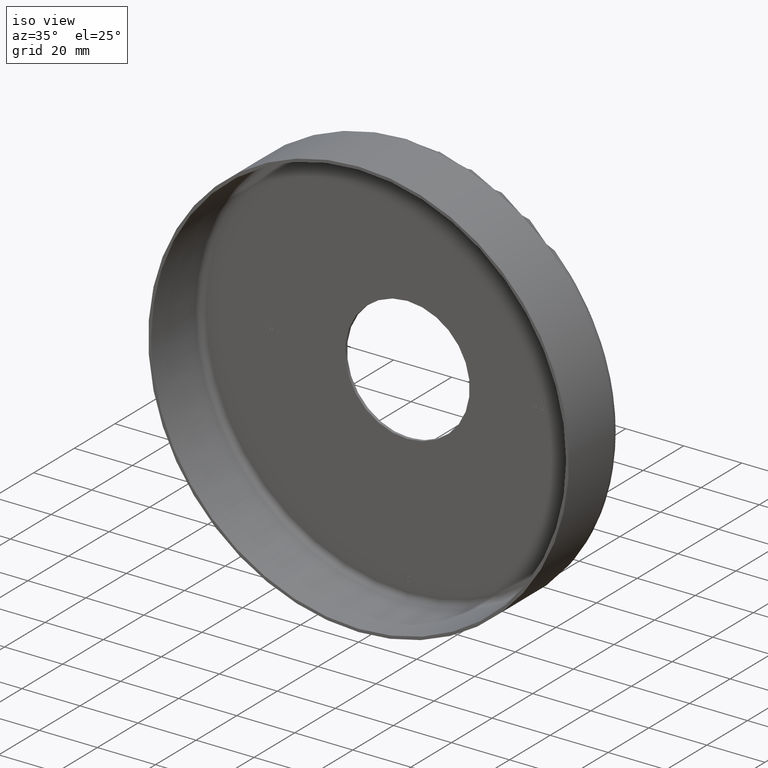
[diagram: clean part render]
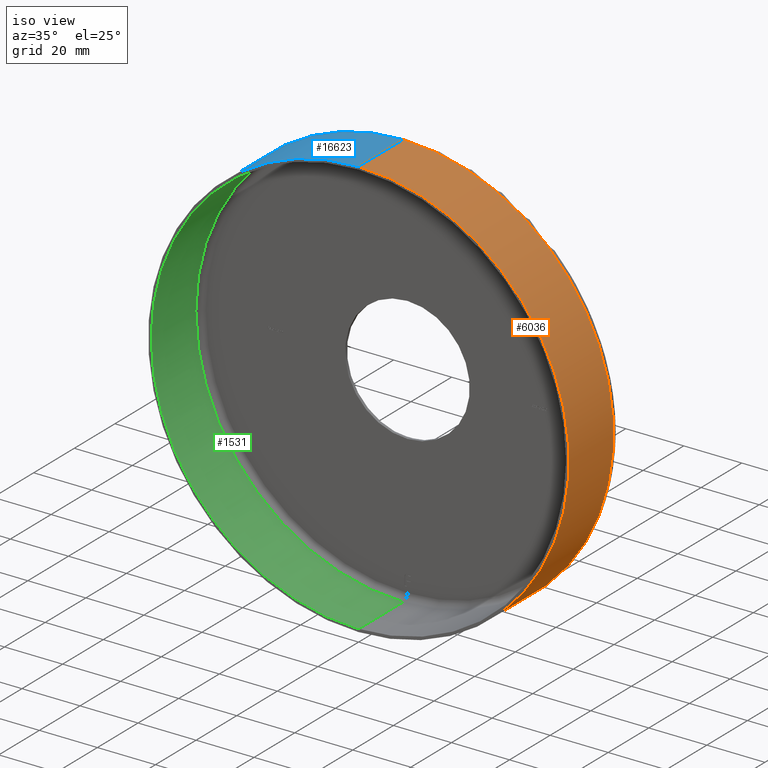
[diagram: same view with three faces highlighted in distinct colors, each labeled with its STEP entity id]
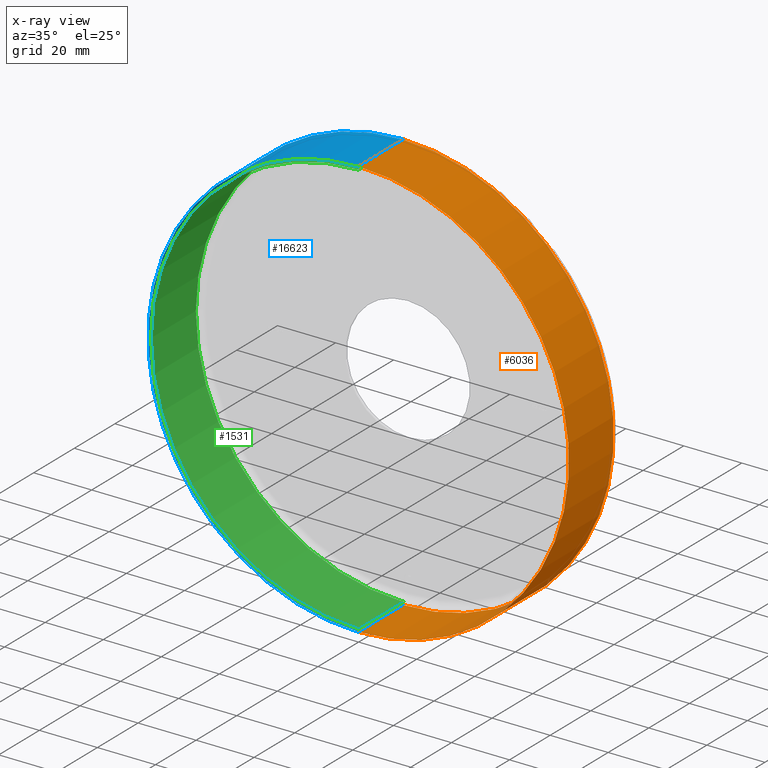
[diagram: x-ray of the same camera — body ghosted, the three highlighted faces saturated]
A machine part, iso view with three faces highlighted in distinct colors.
The next image is the same camera in x-ray (body ghosted, the three faces saturated) — at least one of them is partly hidden behind the body in this view.
Their STEP definitions:

[orange] entity #6036 — the highlighted cylindrical surface (partial cylindrical patch) has radius 72.5 mm, axis along (-0, -1, -0).
#230 = ORIENTED_EDGE ( 'NONE', *, *, #12863, .F. ) ;
#344 = ORIENTED_EDGE ( 'NONE', *, *, #643, .T. ) ;
#426 = CARTESIAN_POINT ( 'NONE',  ( 0.000000000000000000, 0.000000000000000000, 0.000000000000000000 ) ) ;
#643 = EDGE_CURVE ( 'NONE', #5428, #13006, #11195, .T. ) ;
#842 = ORIENTED_EDGE ( 'NONE', *, *, #5270, .T. ) ;
#1445 = CARTESIAN_POINT ( 'NONE',  ( 0.000000000000000000, 0.000000000000000000, -72.50000000000000000 ) ) ;
#2555 = DIRECTION ( 'NONE',  ( -0.000000000000000000, -1.000000000000000000, -0.000000000000000000 ) ) ;
#2934 = CIRCLE ( 'NONE', #3778, 72.50000000000000000 ) ;
#3068 = CARTESIAN_POINT ( 'NONE',  ( 0.000000000000000000, 22.00000000000000355, 0.000000000000000000 ) ) ;
#3213 = AXIS2_PLACEMENT_3D ( 'NONE', #3484, #16206, #16651 ) ;
#3436 = VECTOR ( 'NONE', #5683, 1000.000000000000000 ) ;
#3484 = CARTESIAN_POINT ( 'NONE',  ( 0.000000000000000000, 0.000000000000000000, 0.000000000000000000 ) ) ;
#3778 = AXIS2_PLACEMENT_3D ( 'NONE', #426, #4272, #6810 ) ;
#3873 = VERTEX_POINT ( 'NONE', #1445 ) ;
#4154 = DIRECTION ( 'NONE',  ( 0.000000000000000000, 0.000000000000000000, -1.000000000000000000 ) ) ;
#4272 = DIRECTION ( 'NONE',  ( -0.000000000000000000, -1.000000000000000000, -0.000000000000000000 ) ) ;
#4352 = EDGE_CURVE ( 'NONE', #13092, #3873, #16183, .T. ) ;
#4464 = FACE_OUTER_BOUND ( 'NONE', #10176, .T. ) ;
#4636 = AXIS2_PLACEMENT_3D ( 'NONE', #3068, #10823, #4154 ) ;
#4958 = CARTESIAN_POINT ( 'NONE',  ( 8.878689293818309285E-15, 0.000000000000000000, 72.50000000000000000 ) ) ;
#5270 = EDGE_CURVE ( 'NONE', #13092, #5428, #5665, .T. ) ;
#5428 = VERTEX_POINT ( 'NONE', #10077 ) ;
#5665 = CIRCLE ( 'NONE', #4636, 72.50000000000000000 ) ;
#5683 = DIRECTION ( 'NONE',  ( -0.000000000000000000, -1.000000000000000000, -0.000000000000000000 ) ) ;
#6036 = ADVANCED_FACE ( 'NONE', ( #4464 ), #7687, .T. ) ;
#6137 = VECTOR ( 'NONE', #2555, 1000.000000000000000 ) ;
#6810 = DIRECTION ( 'NONE',  ( 0.000000000000000000, 0.000000000000000000, -1.000000000000000000 ) ) ;
#7603 = ORIENTED_EDGE ( 'NONE', *, *, #4352, .F. ) ;
#7687 = CYLINDRICAL_SURFACE ( 'NONE', #3213, 72.50000000000000000 ) ;
#10077 = CARTESIAN_POINT ( 'NONE',  ( 8.878689293818309285E-15, 22.00000000000000355, 72.50000000000000000 ) ) ;
#10176 = EDGE_LOOP ( 'NONE', ( #842, #344, #230, #7603 ) ) ;
#10823 = DIRECTION ( 'NONE',  ( -0.000000000000000000, -1.000000000000000000, -0.000000000000000000 ) ) ;
#11195 = LINE ( 'NONE', #4958, #6137 ) ;
#12863 = EDGE_CURVE ( 'NONE', #3873, #13006, #2934, .T. ) ;
#12899 = CARTESIAN_POINT ( 'NONE',  ( 8.878689293818309285E-15, 0.000000000000000000, 72.50000000000000000 ) ) ;
#13006 = VERTEX_POINT ( 'NONE', #12899 ) ;
#13092 = VERTEX_POINT ( 'NONE', #13237 ) ;
#13237 = CARTESIAN_POINT ( 'NONE',  ( 0.000000000000000000, 22.00000000000000355, -72.50000000000000000 ) ) ;
#13584 = CARTESIAN_POINT ( 'NONE',  ( 0.000000000000000000, 0.000000000000000000, -72.50000000000000000 ) ) ;
#16183 = LINE ( 'NONE', #13584, #3436 ) ;
#16206 = DIRECTION ( 'NONE',  ( -0.000000000000000000, -1.000000000000000000, -0.000000000000000000 ) ) ;
#16651 = DIRECTION ( 'NONE',  ( 0.000000000000000000, 0.000000000000000000, -1.000000000000000000 ) ) ;

[blue] entity #16623 — the highlighted cylindrical surface (partial cylindrical patch) has radius 72.5 mm, axis along (-0, -1, -0).
#643 = EDGE_CURVE ( 'NONE', #5428, #13006, #11195, .T. ) ;
#645 = ORIENTED_EDGE ( 'NONE', *, *, #643, .F. ) ;
#866 = CARTESIAN_POINT ( 'NONE',  ( 0.000000000000000000, 0.000000000000000000, 0.000000000000000000 ) ) ;
#872 = DIRECTION ( 'NONE',  ( 0.000000000000000000, 0.000000000000000000, -1.000000000000000000 ) ) ;
#1282 = DIRECTION ( 'NONE',  ( -0.000000000000000000, -1.000000000000000000, -0.000000000000000000 ) ) ;
#1286 = CYLINDRICAL_SURFACE ( 'NONE', #7599, 72.50000000000000000 ) ;
#1445 = CARTESIAN_POINT ( 'NONE',  ( 0.000000000000000000, 0.000000000000000000, -72.50000000000000000 ) ) ;
#2159 = DIRECTION ( 'NONE',  ( 0.000000000000000000, 0.000000000000000000, -1.000000000000000000 ) ) ;
#2522 = DIRECTION ( 'NONE',  ( 0.000000000000000000, 0.000000000000000000, -1.000000000000000000 ) ) ;
#2555 = DIRECTION ( 'NONE',  ( -0.000000000000000000, -1.000000000000000000, -0.000000000000000000 ) ) ;
#3436 = VECTOR ( 'NONE', #5683, 1000.000000000000000 ) ;
#3873 = VERTEX_POINT ( 'NONE', #1445 ) ;
#4182 = ORIENTED_EDGE ( 'NONE', *, *, #10071, .F. ) ;
#4352 = EDGE_CURVE ( 'NONE', #13092, #3873, #16183, .T. ) ;
#4958 = CARTESIAN_POINT ( 'NONE',  ( 8.878689293818309285E-15, 0.000000000000000000, 72.50000000000000000 ) ) ;
#5342 = FACE_OUTER_BOUND ( 'NONE', #7147, .T. ) ;
#5428 = VERTEX_POINT ( 'NONE', #10077 ) ;
#5594 = CARTESIAN_POINT ( 'NONE',  ( 0.000000000000000000, 0.000000000000000000, 0.000000000000000000 ) ) ;
#5683 = DIRECTION ( 'NONE',  ( -0.000000000000000000, -1.000000000000000000, -0.000000000000000000 ) ) ;
#5968 = DIRECTION ( 'NONE',  ( -0.000000000000000000, -1.000000000000000000, -0.000000000000000000 ) ) ;
#6020 = DIRECTION ( 'NONE',  ( -0.000000000000000000, -1.000000000000000000, -0.000000000000000000 ) ) ;
#6137 = VECTOR ( 'NONE', #2555, 1000.000000000000000 ) ;
#6765 = CIRCLE ( 'NONE', #14282, 72.50000000000000000 ) ;
#7147 = EDGE_LOOP ( 'NONE', ( #645, #8598, #11726, #4182 ) ) ;
#7599 = AXIS2_PLACEMENT_3D ( 'NONE', #5594, #1282, #2522 ) ;
#8598 = ORIENTED_EDGE ( 'NONE', *, *, #14045, .T. ) ;
#10071 = EDGE_CURVE ( 'NONE', #13006, #3873, #11647, .T. ) ;
#10077 = CARTESIAN_POINT ( 'NONE',  ( 8.878689293818309285E-15, 22.00000000000000355, 72.50000000000000000 ) ) ;
#11195 = LINE ( 'NONE', #4958, #6137 ) ;
#11647 = CIRCLE ( 'NONE', #13734, 72.50000000000000000 ) ;
#11726 = ORIENTED_EDGE ( 'NONE', *, *, #4352, .T. ) ;
#12899 = CARTESIAN_POINT ( 'NONE',  ( 8.878689293818309285E-15, 0.000000000000000000, 72.50000000000000000 ) ) ;
#13006 = VERTEX_POINT ( 'NONE', #12899 ) ;
#13092 = VERTEX_POINT ( 'NONE', #13237 ) ;
#13237 = CARTESIAN_POINT ( 'NONE',  ( 0.000000000000000000, 22.00000000000000355, -72.50000000000000000 ) ) ;
#13584 = CARTESIAN_POINT ( 'NONE',  ( 0.000000000000000000, 0.000000000000000000, -72.50000000000000000 ) ) ;
#13698 = CARTESIAN_POINT ( 'NONE',  ( 0.000000000000000000, 22.00000000000000355, 0.000000000000000000 ) ) ;
#13734 = AXIS2_PLACEMENT_3D ( 'NONE', #866, #6020, #2159 ) ;
#14045 = EDGE_CURVE ( 'NONE', #5428, #13092, #6765, .T. ) ;
#14282 = AXIS2_PLACEMENT_3D ( 'NONE', #13698, #5968, #872 ) ;
#16183 = LINE ( 'NONE', #13584, #3436 ) ;
#16623 = ADVANCED_FACE ( 'NONE', ( #5342 ), #1286, .T. ) ;

[green] entity #1531 — the highlighted cylindrical surface (partial cylindrical patch) has radius 71.5 mm, axis along (-0, -1, -0).
#44 = DIRECTION ( 'NONE',  ( -0.000000000000000000, -1.000000000000000000, -0.000000000000000000 ) ) ;
#57 = ORIENTED_EDGE ( 'NONE', *, *, #12360, .T. ) ;
#121 = DIRECTION ( 'NONE',  ( -0.000000000000000000, -1.000000000000000000, -0.000000000000000000 ) ) ;
#246 = DIRECTION ( 'NONE',  ( -0.000000000000000000, -1.000000000000000000, -0.000000000000000000 ) ) ;
#571 = CIRCLE ( 'NONE', #1589, 71.50000000000000000 ) ;
#807 = VERTEX_POINT ( 'NONE', #846 ) ;
#846 = CARTESIAN_POINT ( 'NONE',  ( 0.000000000000000000, -1.224646799147353207E-16, -71.50000000000000000 ) ) ;
#916 = EDGE_CURVE ( 'NONE', #12772, #807, #6342, .T. ) ;
#949 = DIRECTION ( 'NONE',  ( -0.000000000000000000, -1.000000000000000000, -0.000000000000000000 ) ) ;
#1456 = CYLINDRICAL_SURFACE ( 'NONE', #15948, 71.50000000000000000 ) ;
#1531 = ADVANCED_FACE ( 'NONE', ( #2464 ), #1456, .F. ) ;
#1589 = AXIS2_PLACEMENT_3D ( 'NONE', #14833, #15900, #9694 ) ;
#2464 = FACE_OUTER_BOUND ( 'NONE', #7916, .T. ) ;
#2817 = LINE ( 'NONE', #3870, #10721 ) ;
#3870 = CARTESIAN_POINT ( 'NONE',  ( 8.756224613903574137E-15, 0.000000000000000000, 71.50000000000000000 ) ) ;
#4223 = EDGE_CURVE ( 'NONE', #13672, #16796, #2817, .T. ) ;
#6342 = LINE ( 'NONE', #9174, #9782 ) ;
#7517 = CARTESIAN_POINT ( 'NONE',  ( 8.756224613903574137E-15, 22.00000000000000355, 71.50000000000000000 ) ) ;
#7916 = EDGE_LOOP ( 'NONE', ( #12309, #9783, #57, #12420 ) ) ;
#8657 = EDGE_CURVE ( 'NONE', #13672, #12772, #571, .T. ) ;
#8969 = AXIS2_PLACEMENT_3D ( 'NONE', #11192, #949, #11347 ) ;
#9174 = CARTESIAN_POINT ( 'NONE',  ( 0.000000000000000000, 0.000000000000000000, -71.50000000000000000 ) ) ;
#9540 = CIRCLE ( 'NONE', #8969, 71.50000000000000000 ) ;
#9694 = DIRECTION ( 'NONE',  ( 0.000000000000000000, 0.000000000000000000, -1.000000000000000000 ) ) ;
#9782 = VECTOR ( 'NONE', #246, 1000.000000000000000 ) ;
#9783 = ORIENTED_EDGE ( 'NONE', *, *, #4223, .T. ) ;
#10721 = VECTOR ( 'NONE', #121, 1000.000000000000000 ) ;
#10837 = CARTESIAN_POINT ( 'NONE',  ( 0.000000000000000000, 22.00000000000000355, -71.50000000000000000 ) ) ;
#11192 = CARTESIAN_POINT ( 'NONE',  ( 0.000000000000000000, -1.224646799147353207E-16, 0.000000000000000000 ) ) ;
#11347 = DIRECTION ( 'NONE',  ( 0.000000000000000000, 0.000000000000000000, -1.000000000000000000 ) ) ;
#12309 = ORIENTED_EDGE ( 'NONE', *, *, #8657, .F. ) ;
#12360 = EDGE_CURVE ( 'NONE', #16796, #807, #9540, .T. ) ;
#12420 = ORIENTED_EDGE ( 'NONE', *, *, #916, .F. ) ;
#12772 = VERTEX_POINT ( 'NONE', #10837 ) ;
#12832 = CARTESIAN_POINT ( 'NONE',  ( 0.000000000000000000, 0.000000000000000000, 0.000000000000000000 ) ) ;
#13672 = VERTEX_POINT ( 'NONE', #7517 ) ;
#14833 = CARTESIAN_POINT ( 'NONE',  ( 0.000000000000000000, 22.00000000000000355, 0.000000000000000000 ) ) ;
#15815 = DIRECTION ( 'NONE',  ( 0.000000000000000000, 0.000000000000000000, -1.000000000000000000 ) ) ;
#15900 = DIRECTION ( 'NONE',  ( -0.000000000000000000, -1.000000000000000000, -0.000000000000000000 ) ) ;
#15948 = AXIS2_PLACEMENT_3D ( 'NONE', #12832, #44, #15815 ) ;
#16434 = CARTESIAN_POINT ( 'NONE',  ( 8.756224613903574137E-15, -1.224646799147353207E-16, 71.50000000000000000 ) ) ;
#16796 = VERTEX_POINT ( 'NONE', #16434 ) ;